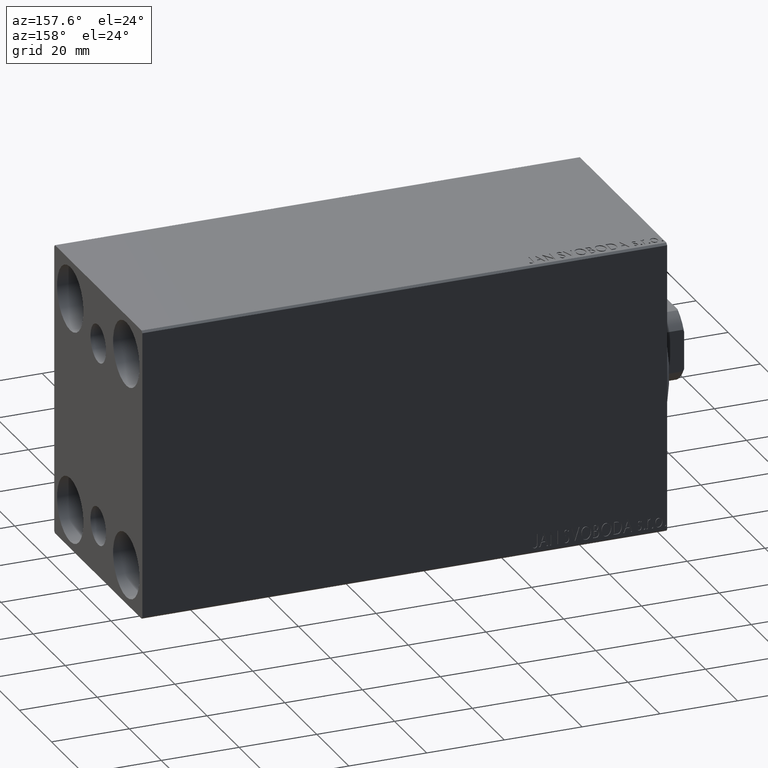
[diagram: clean part render]
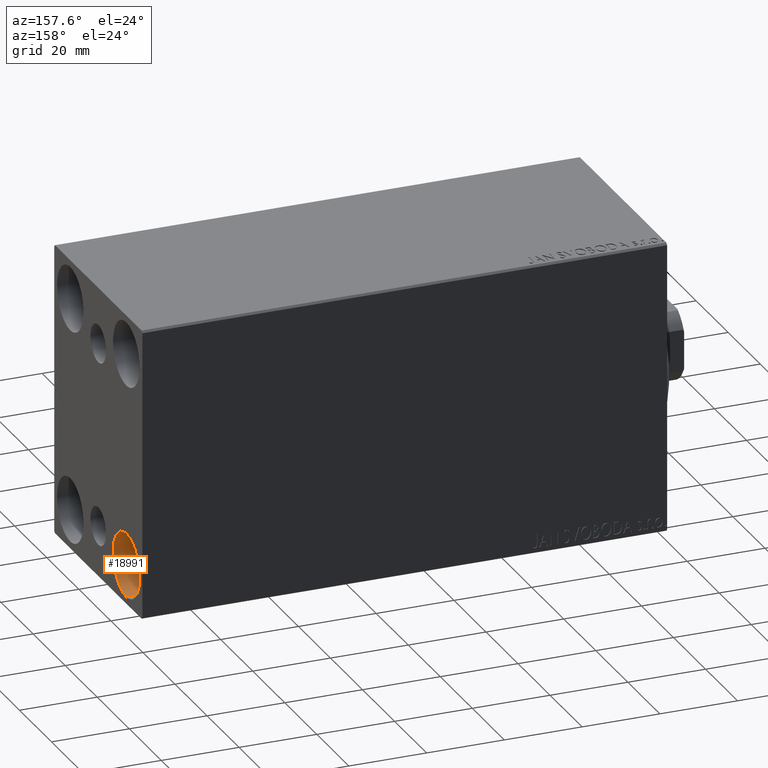
[diagram: same view with one face highlighted and labeled with its STEP entity id]
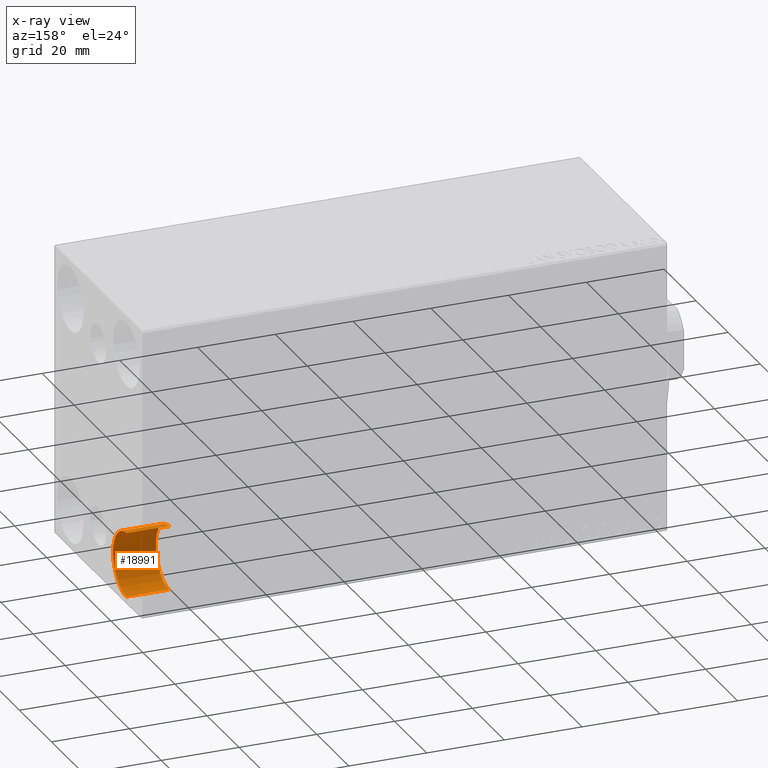
[diagram: x-ray of the same camera — body ghosted, the highlighted face saturated]
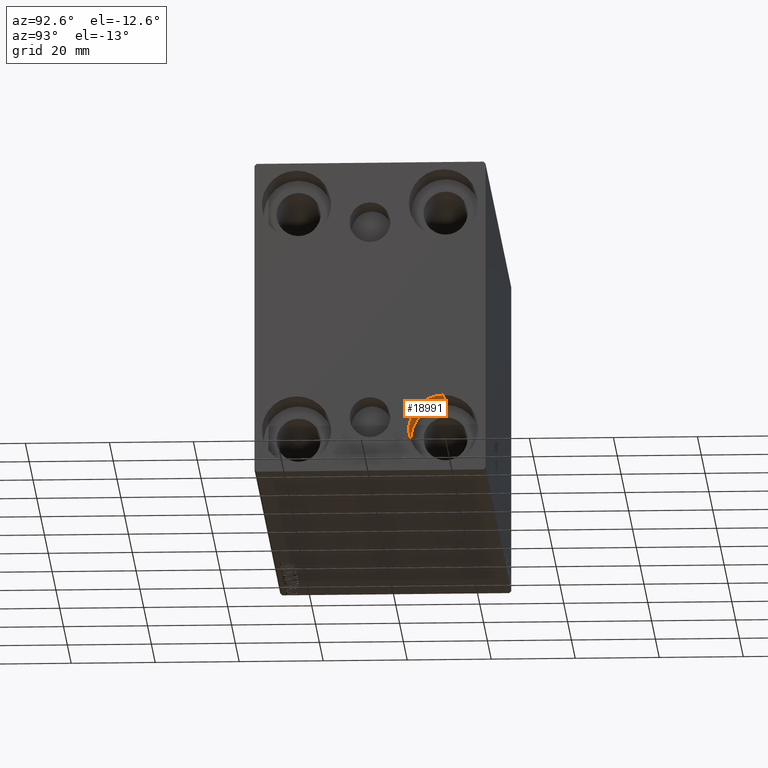
[diagram: same view with one face highlighted and labeled with its STEP entity id]
A machine part, auxiliary view. The second image highlights one B-rep face of the part: STEP entity #18991.
The next image is the same camera in x-ray: the body ghosted, the highlighted face saturated — about 21% of this face is hidden behind the body in this view.
A second angle (auxiliary view) of the same face is appended — the face is thin or edge-on in the first view.
In plain terms, the highlighted cylindrical surface (edge-blend (fillet) strip) has radius 8.25 mm, axis along (1, 0, 0).
Its self-contained STEP definition (entity closure, byte-faithful):
#2 = ORIENTED_EDGE ( 'NONE', *, *, #22784, .F. ) ;
#328 = VERTEX_POINT ( 'NONE', #15605 ) ;
#794 = FACE_OUTER_BOUND ( 'NONE', #11363, .T. ) ;
#1076 = EDGE_CURVE ( 'NONE', #28710, #328, #37542, .T. ) ;
#1779 = AXIS2_PLACEMENT_3D ( 'NONE', #26853, #43390, #39409 ) ;
#2573 = LINE ( 'NONE', #19981, #41063 ) ;
#2998 = DIRECTION ( 'NONE',  ( 1.000000000000000000, -0.000000000000000000, -0.000000000000000000 ) ) ;
#3500 = VERTEX_POINT ( 'NONE', #31222 ) ;
#3810 = AXIS2_PLACEMENT_3D ( 'NONE', #10047, #23489, #9174 ) ;
#3887 = DIRECTION ( 'NONE',  ( 0.000000000000000000, 0.000000000000000000, -1.000000000000000000 ) ) ;
#4165 = AXIS2_PLACEMENT_3D ( 'NONE', #14223, #10502, #3887 ) ;
#9174 = DIRECTION ( 'NONE',  ( 0.000000000000000000, 0.000000000000000000, 1.000000000000000000 ) ) ;
#10047 = CARTESIAN_POINT ( 'NONE',  ( 135.0000000000000000, 17.49999999999999645, -27.50000000000000355 ) ) ;
#10126 = EDGE_CURVE ( 'NONE', #38949, #328, #11437, .T. ) ;
#10132 = ORIENTED_EDGE ( 'NONE', *, *, #10126, .T. ) ;
#10273 = CYLINDRICAL_SURFACE ( 'NONE', #4165, 8.250000000000000000 ) ;
#10502 = DIRECTION ( 'NONE',  ( 1.000000000000000000, -0.000000000000000000, -0.000000000000000000 ) ) ;
#11363 = EDGE_LOOP ( 'NONE', ( #39526, #10132, #15647, #2 ) ) ;
#11437 = LINE ( 'NONE', #18056, #37672 ) ;
#14223 = CARTESIAN_POINT ( 'NONE',  ( 124.0000000000000142, 17.49999999999999645, -27.50000000000000355 ) ) ;
#15605 = CARTESIAN_POINT ( 'NONE',  ( 135.0000000000000000, 17.49999999999999645, -19.25000000000000355 ) ) ;
#15647 = ORIENTED_EDGE ( 'NONE', *, *, #1076, .F. ) ;
#18056 = CARTESIAN_POINT ( 'NONE',  ( 124.0000000000000142, 17.49999999999999645, -19.25000000000000355 ) ) ;
#18991 = ADVANCED_FACE ( 'NONE', ( #794 ), #10273, .F. ) ;
#19981 = CARTESIAN_POINT ( 'NONE',  ( 124.0000000000000142, 17.49999999999999645, -35.75000000000000711 ) ) ;
#22784 = EDGE_CURVE ( 'NONE', #3500, #28710, #2573, .T. ) ;
#23489 = DIRECTION ( 'NONE',  ( -1.000000000000000000, -0.000000000000000000, -0.000000000000000000 ) ) ;
#24598 = CARTESIAN_POINT ( 'NONE',  ( 135.0000000000000000, 17.49999999999999645, -35.75000000000000711 ) ) ;
#26853 = CARTESIAN_POINT ( 'NONE',  ( 124.0000000000000142, 17.49999999999999645, -27.50000000000000355 ) ) ;
#28230 = EDGE_CURVE ( 'NONE', #3500, #38949, #39064, .T. ) ;
#28710 = VERTEX_POINT ( 'NONE', #24598 ) ;
#31001 = CARTESIAN_POINT ( 'NONE',  ( 124.0000000000000142, 17.49999999999999645, -19.25000000000000355 ) ) ;
#31222 = CARTESIAN_POINT ( 'NONE',  ( 124.0000000000000142, 17.49999999999999645, -35.75000000000000711 ) ) ;
#31479 = DIRECTION ( 'NONE',  ( 1.000000000000000000, -0.000000000000000000, -0.000000000000000000 ) ) ;
#37542 = CIRCLE ( 'NONE', #3810, 8.250000000000000000 ) ;
#37672 = VECTOR ( 'NONE', #31479, 1000.000000000000000 ) ;
#38949 = VERTEX_POINT ( 'NONE', #31001 ) ;
#39064 = CIRCLE ( 'NONE', #1779, 8.250000000000000000 ) ;
#39409 = DIRECTION ( 'NONE',  ( 0.000000000000000000, 0.000000000000000000, 1.000000000000000000 ) ) ;
#39526 = ORIENTED_EDGE ( 'NONE', *, *, #28230, .T. ) ;
#41063 = VECTOR ( 'NONE', #2998, 1000.000000000000000 ) ;
#43390 = DIRECTION ( 'NONE',  ( -1.000000000000000000, -0.000000000000000000, -0.000000000000000000 ) ) ;